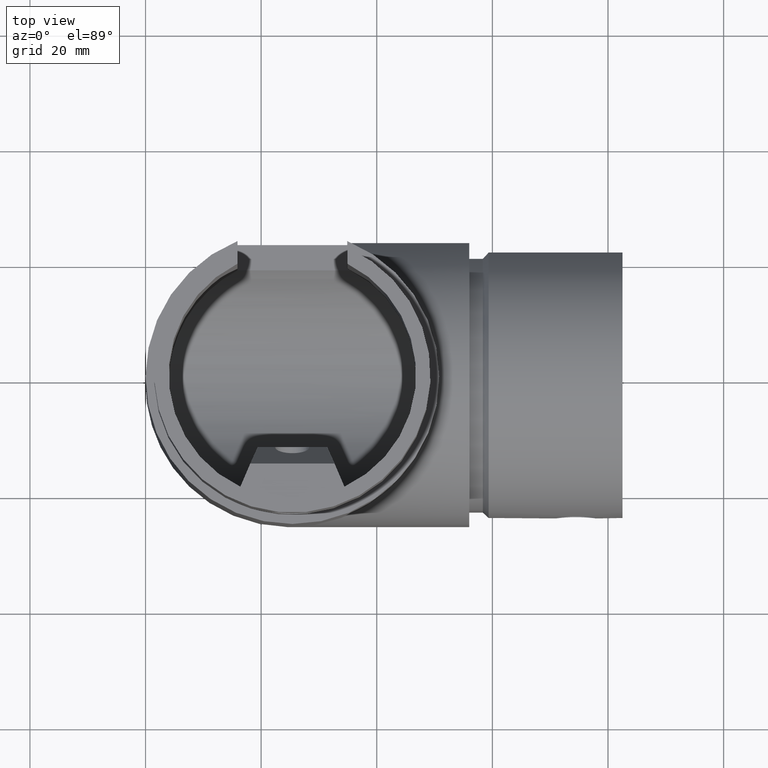
[diagram: clean part render]
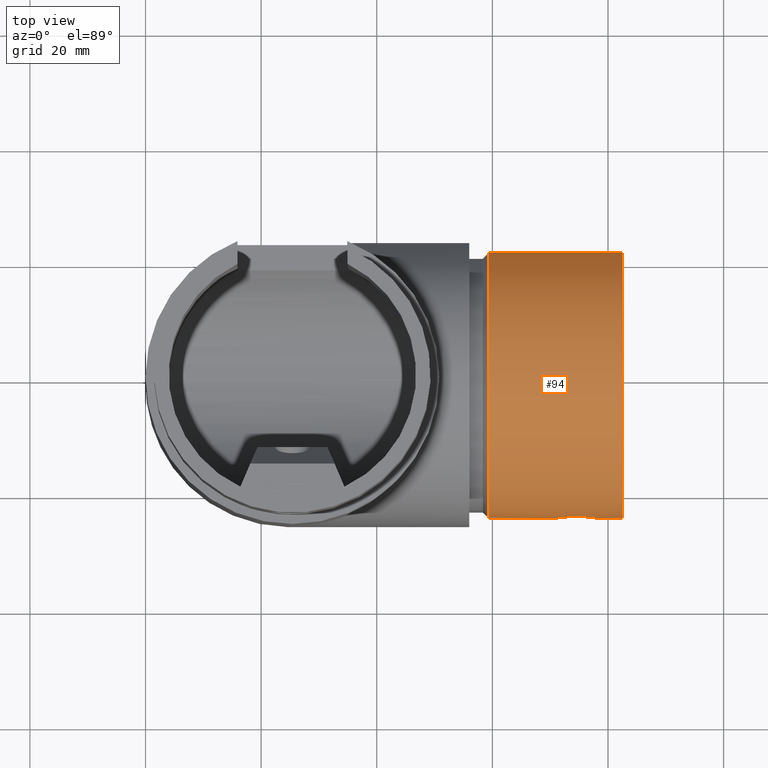
[diagram: same view with one face highlighted and labeled with its STEP entity id]
A machine part, top view. The second image highlights one B-rep face of the part: STEP entity #94.
In plain terms, the highlighted cylindrical surface (partial cylindrical patch) has radius 23.9 mm, axis along (1, 0, -0).
Its self-contained STEP definition (entity closure, byte-faithful):
#94=ADVANCED_FACE('',(#439,#441),#443,.T.);
#439=FACE_BOUND('',#440,.T.);
#440=EDGE_LOOP('',(#988,#989,#990,#991));
#441=FACE_BOUND('',#442,.T.);
#442=EDGE_LOOP('',(#992));
#443=CYLINDRICAL_SURFACE('',#444,23.9);
#444=AXIS2_PLACEMENT_3D('',#445,#446,#447);
#445=CARTESIAN_POINT('',(59.3478819027637,0.,25.4));
#446=DIRECTION('',(1.,0.,-2.84263758669348E-016));
#447=DIRECTION('',(0.,-1.,0.));
#988=ORIENTED_EDGE('',*,*,#1190,.F.);
#989=ORIENTED_EDGE('',*,*,#1191,.T.);
#990=ORIENTED_EDGE('',*,*,#1192,.F.);
#991=ORIENTED_EDGE('',*,*,#1193,.F.);
#992=ORIENTED_EDGE('',*,*,#1194,.T.);
#1190=EDGE_CURVE('',#1312,#1313,#1314,.T.);
#1191=EDGE_CURVE('',#1312,#1315,#1316,.T.);
#1192=EDGE_CURVE('',#1317,#1315,#1318,.F.);
#1193=EDGE_CURVE('',#1313,#1317,#1319,.T.);
#1194=EDGE_CURVE('',#1320,#1320,#1321,.F.);
#1312=VERTEX_POINT('',#1598);
#1313=VERTEX_POINT('',#1599);
#1314=LINE('',#1600,#1601);
#1315=VERTEX_POINT('',#1603);
#1316=CIRCLE('',#1604,23.9);
#1317=VERTEX_POINT('',#1608);
#1318=LINE('',#1609,#1610);
#1319=CIRCLE('',#1612,23.9);
#1320=VERTEX_POINT('',#1616);
#1321=B_SPLINE_CURVE_WITH_KNOTS('',3,
(#1617,#1618,#1619,#1620,#1621,#1622,#1623,#1624,#1625,#1626,#1627,#1628,#1629,#1630,
#1631,#1632,#1633,#1634,#1635,#1636,#1637,#1638,#1639,#1640,#1641,#1642,#1643,#1644,
#1645,#1646,#1647,#1648,#1649,#1650,#1651,#1652,#1653,#1654,#1655,#1656,#1657,#1658,
#1659,#1660,#1661,#1662,#1663,#1664,#1665,#1666,#1667,#1668,#1669,#1670,#1671,#1672,
#1673,#1674,#1675,#1676,#1677,#1678,#1679,#1680,#1681,#1682,#1683),
.UNSPECIFIED.,.T.,.F.,
(4,1,1,1,1,1,1,1,1,1,1,1,1,1,1,1,1,1,1,1,1,1,1,1,1,1,1,1,1,1,1,1,1,1,1,1,1,1,1,1,
1,1,1,1,1,1,1,1,1,1,1,1,1,1,1,1,1,1,1,1,1,1,1,1,4),
(0.,0.00915387775428704,0.0175138701718398,0.0247486325523463,0.0309202269160694,
0.0371432468264196,0.0437490369837088,0.0513621774148743,0.0608586731083896,0.0740721907063715,
0.0914244545635111,0.112722366768468,0.13470583472685,0.156165304296211,0.175678572425833,
0.194117451102488,0.211684042223578,0.2287226853292,0.245832994806659,0.262949208576765,
0.280060473953562,0.297749269509238,0.316345943035339,0.33620429998497,0.356207929173006,
0.373808013989115,0.387885992084471,0.398919287841046,0.409091217999965,0.420048054804545,
0.433372579106869,0.450776846019059,0.470219064228619,0.489594237091812,0.508213845403494,
0.527205445183982,0.547582707361222,0.568898260972779,0.589022021327719,0.607235428940382,
0.623770381896793,0.642032803366313,0.661967834625812,0.682131033870484,0.701064343281129,
0.718926036159534,0.73624081121389,0.753287888521434,0.770232691889694,0.787316896513477,
0.804866630285547,0.823222672762484,0.842565893060851,0.862222850567628,0.878872252959322,
0.89220323599061,0.902489227489668,0.913492241330653,0.926499224282734,0.941550739439979,
0.957016790174558,0.97086656883127,0.98245755142075,0.991920741514981,1.),
.UNSPECIFIED.);
#1598=CARTESIAN_POINT('',(59.3478819027637,21.9308002589965,34.9));
#1599=CARTESIAN_POINT('',(82.5,21.9308002589965,34.9));
#1600=CARTESIAN_POINT('',(59.3478819027637,21.9308002589965,34.9));
#1601=VECTOR('',#1602,1.);
#1602=DIRECTION('',(1.,0.,0.));
#1603=CARTESIAN_POINT('',(59.3478819027637,21.9308002589965,15.9));
#1604=AXIS2_PLACEMENT_3D('',#1605,#1606,#1607);
#1605=CARTESIAN_POINT('',(59.3478819027637,0.,25.4));
#1606=DIRECTION('',(1.,0.,-2.84263758669348E-016));
#1607=DIRECTION('',(1.12991870600787E-016,0.917606705397342,0.397489539748955));
#1608=CARTESIAN_POINT('',(82.5,21.9308002589965,15.9));
#1609=CARTESIAN_POINT('',(59.3478819027637,21.9308002589965,15.9));
#1610=VECTOR('',#1611,1.);
#1611=DIRECTION('',(1.,0.,0.));
#1612=AXIS2_PLACEMENT_3D('',#1613,#1614,#1615);
#1613=CARTESIAN_POINT('',(82.5,0.,25.4));
#1614=DIRECTION('',(1.,0.,9.86813786949344E-019));
#1615=DIRECTION('',(-3.92248157992418E-019,0.917606705397342,0.397489539748955));
#1616=CARTESIAN_POINT('',(74.5,-23.6283527691534,21.8068195958955));
#1617=CARTESIAN_POINT('',(74.5,-23.6283527691534,21.8068195958955));
#1618=CARTESIAN_POINT('',(74.56748151268,-23.6283533162411,21.8068230784635));
#1619=CARTESIAN_POINT('',(74.6967116796399,-23.6289029311127,21.8104345033423));
#1620=CARTESIAN_POINT('',(74.8783889243748,-23.631145812712,21.8252186546262));
#1621=CARTESIAN_POINT('',(75.0377514750157,-23.6342610468347,21.8458650017106));
#1622=CARTESIAN_POINT('',(75.1806011575392,-23.6379276785541,21.8703260793605));
#1623=CARTESIAN_POINT('',(75.3175083569961,-23.64221875696,21.899166294734));
#1624=CARTESIAN_POINT('',(75.4641235795727,-23.6476622585127,21.936092884027));
#1625=CARTESIAN_POINT('',(75.6319209225429,-23.6549585287922,21.9861916677071));
#1626=CARTESIAN_POINT('',(75.8429955945496,-23.6657438098376,22.0615308423705));
#1627=CARTESIAN_POINT('',(76.1146753975142,-23.6823005386797,22.1803679586691));
#1628=CARTESIAN_POINT('',(76.4514607772342,-23.7071725938098,22.3672630682599));
#1629=CARTESIAN_POINT('',(76.8175454418346,-23.7398742837937,22.63220831654));
#1630=CARTESIAN_POINT('',(77.1690268746073,-23.7768013682893,22.967337336393));
#1631=CARTESIAN_POINT('',(77.465003105326,-23.812026141275,23.3391902201314));
#1632=CARTESIAN_POINT('',(77.6983768357621,-23.8423951544961,23.726613134503));
#1633=CARTESIAN_POINT('',(77.8724827064273,-23.8665320751317,24.1156947369881));
#1634=CARTESIAN_POINT('',(77.9957355354349,-23.8843902448174,24.5072815314606));
#1635=CARTESIAN_POINT('',(78.0730668199566,-23.8959212092097,24.9026498289456));
#1636=CARTESIAN_POINT('',(78.1061147099577,-23.9009274981441,25.3023075436509));
#1637=CARTESIAN_POINT('',(78.0946433403937,-23.8991843280992,25.7040375174972));
#1638=CARTESIAN_POINT('',(78.0382511364344,-23.890697512698,26.1055101702668));
#1639=CARTESIAN_POINT('',(77.9348012434586,-23.8754747921735,26.5070517487193));
#1640=CARTESIAN_POINT('',(77.7786755793697,-23.8533525823216,26.9106077711599));
#1641=CARTESIAN_POINT('',(77.5675115851838,-23.8250763198668,27.3041557279947));
#1642=CARTESIAN_POINT('',(77.3148696254633,-23.7938173830091,27.6584862842024));
#1643=CARTESIAN_POINT('',(77.0534370730961,-23.7644616841754,27.9458391002077));
#1644=CARTESIAN_POINT('',(76.8161461724381,-23.7403799418631,28.1595459852141));
#1645=CARTESIAN_POINT('',(76.6078197388966,-23.7211452226345,28.3195323102225));
#1646=CARTESIAN_POINT('',(76.4085875398811,-23.7043725336138,28.4525374527634));
#1647=CARTESIAN_POINT('',(76.1875666684597,-23.6876019996064,28.5800980594111));
#1648=CARTESIAN_POINT('',(75.9088916640116,-23.6692385644539,28.7141339579932));
#1649=CARTESIAN_POINT('',(75.5605856891678,-23.6508489788773,28.8427131656452));
#1650=CARTESIAN_POINT('',(75.156912278726,-23.6361394066776,28.9418673106787));
#1651=CARTESIAN_POINT('',(74.735751957694,-23.6282848825472,28.993641044881));
#1652=CARTESIAN_POINT('',(74.3152897750765,-23.6278580959263,28.9964349193853));
#1653=CARTESIAN_POINT('',(73.8893742928821,-23.6348675204838,28.950299762741));
#1654=CARTESIAN_POINT('',(73.4523123880934,-23.6499690442449,28.8488724487859));
#1655=CARTESIAN_POINT('',(73.0231207882027,-23.6728010134237,28.6894476560368));
#1656=CARTESIAN_POINT('',(72.6310096226107,-23.7005802016603,28.4837005427355));
#1657=CARTESIAN_POINT('',(72.2943236894746,-23.7295901807589,28.2523226969347));
#1658=CARTESIAN_POINT('',(71.9940953712992,-23.7593177511756,27.9940853367909));
#1659=CARTESIAN_POINT('',(71.7134321859558,-23.7904665350173,27.6936155279514));
#1660=CARTESIAN_POINT('',(71.4529867861472,-23.8224290251506,27.3369341750395));
#1661=CARTESIAN_POINT('',(71.2356797433212,-23.8513639778594,26.9420964766329));
#1662=CARTESIAN_POINT('',(71.0738477773673,-23.8742208278412,26.5343094397729));
#1663=CARTESIAN_POINT('',(70.9661910735451,-23.8900338259563,26.1283120164015));
#1664=CARTESIAN_POINT('',(70.9071164272269,-23.8989175984682,25.7248948781341));
#1665=CARTESIAN_POINT('',(70.8934772974925,-23.9009895929854,25.3234710315408));
#1666=CARTESIAN_POINT('',(70.9239476468344,-23.8963719118824,24.9250633759608));
#1667=CARTESIAN_POINT('',(70.9985097389539,-23.8852390037883,24.5301238777289));
#1668=CARTESIAN_POINT('',(71.1191700518286,-23.8677206651429,24.1379739568161));
#1669=CARTESIAN_POINT('',(71.2899177235007,-23.8439796822849,23.7494278574464));
#1670=CARTESIAN_POINT('',(71.5125163175258,-23.8148856006147,23.3735542670846));
#1671=CARTESIAN_POINT('',(71.7697726582063,-23.7839726250046,23.0410957639861));
#1672=CARTESIAN_POINT('',(72.0298408325395,-23.7557230430555,22.7745275822344));
#1673=CARTESIAN_POINT('',(72.2588928530459,-23.7332392574652,22.580028560741));
#1674=CARTESIAN_POINT('',(72.4673049821475,-23.7146279230406,22.4280497073799));
#1675=CARTESIAN_POINT('',(72.6823878509327,-23.6971714916714,22.2918977924662));
#1676=CARTESIAN_POINT('',(72.938347467444,-23.6788836366437,22.1555046654041));
#1677=CARTESIAN_POINT('',(73.2345893461989,-23.6611901712278,22.0291252932874));
#1678=CARTESIAN_POINT('',(73.5469759806351,-23.6466877665827,21.9291924870625));
#1679=CARTESIAN_POINT('',(73.841970808332,-23.636882157031,21.8632499530302));
#1680=CARTESIAN_POINT('',(74.096924671171,-23.6313815495013,21.8267666408281));
#1681=CARTESIAN_POINT('',(74.3112249438328,-23.6288361969004,21.8099966206066));
#1682=CARTESIAN_POINT('',(74.4404404779553,-23.6283522862911,21.8068165221635));
#1683=CARTESIAN_POINT('',(74.5,-23.6283527691534,21.8068195958955));